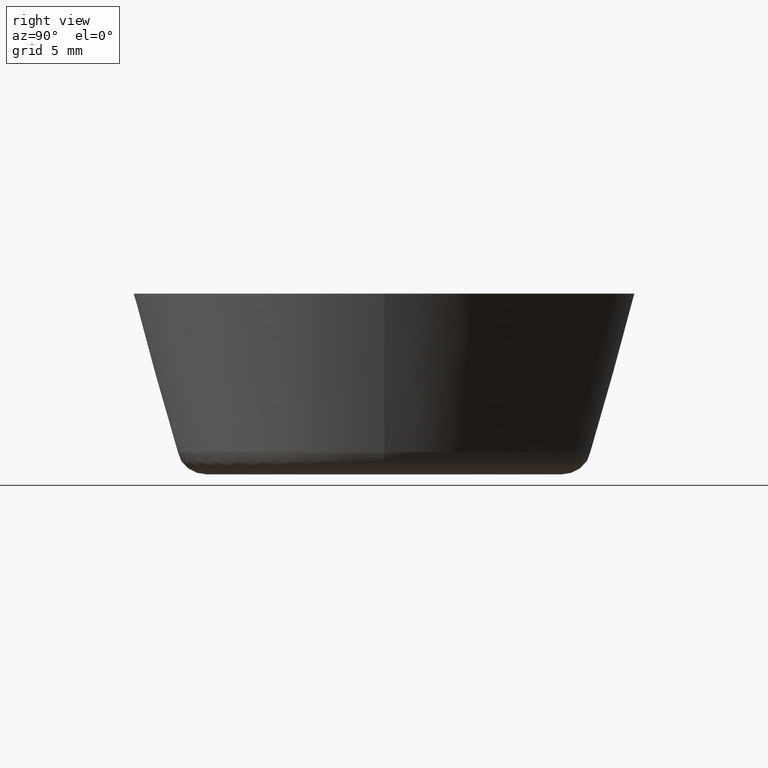
[diagram: clean part render]
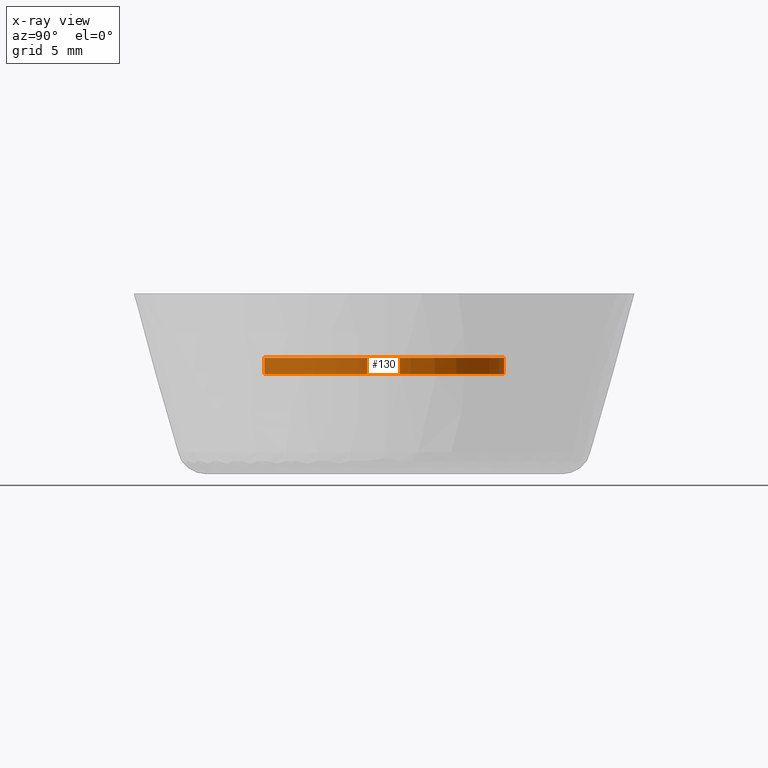
[diagram: x-ray — body ghosted, one internal face saturated and labeled with its STEP entity id]
A machine part, right view, then the same camera in x-ray: the body is ghosted and one INTERNAL B-rep face — a face not visible from any outside direction — is saturated and labeled: STEP entity #130.
In plain terms, the highlighted cylindrical surface (partial cylindrical patch) has radius 6 mm, axis along (-0, -0, -1).
Its self-contained STEP definition (entity closure, byte-faithful):
#130=ADVANCED_FACE('',(#319),#318,.F.);
#318=CYLINDRICAL_SURFACE('',#491,6.00000000000E+000);
#319=FACE_OUTER_BOUND('',#492,.T.);
#488=CARTESIAN_POINT('',(-1.24840330306E-015,3.59158793303E-016,5.40000009537E+000));
#489=DIRECTION('',(-2.38948705047E-015,-2.84026756780E-016,-1.00000000000E+000));
#490=DIRECTION('',(-1.18034234657E-001,9.93009526364E-001,2.27931497802E-028));
#491=AXIS2_PLACEMENT_3D('',#488,#489,#490);
#492=EDGE_LOOP('',(#574,#575,#576,#577));
#574=ORIENTED_EDGE('',*,*,#609,.F.);
#575=ORIENTED_EDGE('',*,*,#622,.T.);
#576=ORIENTED_EDGE('',*,*,#599,.T.);
#577=ORIENTED_EDGE('',*,*,#623,.F.);
#599=EDGE_CURVE('',#733,#732,#740,.T.);
#609=EDGE_CURVE('',#803,#802,#810,.T.);
#622=EDGE_CURVE('',#803,#733,#892,.T.);
#623=EDGE_CURVE('',#802,#732,#898,.T.);
#732=VERTEX_POINT('',#972);
#733=VERTEX_POINT('',#973);
#740=CIRCLE('',#981,6.00000000000E+000);
#802=VERTEX_POINT('',#1022);
#803=VERTEX_POINT('',#1023);
#810=CIRCLE('',#1031,6.00000000000E+000);
#892=(BOUNDED_CURVE() B_SPLINE_CURVE(1,(#1071,#1072),.UNSPECIFIED.,.F.,.F.) B_SPLINE_CURVE_WITH_KNOTS((2,2),(8.33333730703E-002,9.16666640476E-001),.UNSPECIFIED.) CURVE() GEOMETRIC_REPRESENTATION_ITEM() RATIONAL_B_SPLINE_CURVE((1.00000000000E+000,1.00000000000E+000)) REPRESENTATION_ITEM('') );
#898=(BOUNDED_CURVE() B_SPLINE_CURVE(1,(#1073,#1074),.UNSPECIFIED.,.F.,.F.) B_SPLINE_CURVE_WITH_KNOTS((2,2),(8.33333333391E-002,9.16666666667E-001),.UNSPECIFIED.) CURVE() GEOMETRIC_REPRESENTATION_ITEM() RATIONAL_B_SPLINE_CURVE((7.50000000000E-001,7.50000000000E-001)) REPRESENTATION_ITEM('') );
#972=CARTESIAN_POINT('',(7.09235159566E-001,-5.95793466634E+000,5.00000000000E+000));
#973=CARTESIAN_POINT('',(-7.09235159563E-001,5.95793466635E+000,5.00000000000E+000));
#978=CARTESIAN_POINT('',(1.73017156158E-012,7.88702436694E-013,5.00000000000E+000));
#979=DIRECTION('',(4.45154869209E-015,1.12542127300E-015,-1.00000000000E+000));
#980=DIRECTION('',(-1.18205859927E-001,9.92989111058E-001,5.91331928284E-016));
#981=AXIS2_PLACEMENT_3D('',#978,#979,#980);
#1022=CARTESIAN_POINT('',(7.08205350218E-001,-5.95805716504E+000,5.80000000000E+000));
#1023=CARTESIAN_POINT('',(-7.08205407942E-001,5.95805715818E+000,5.80000000000E+000));
#1028=CARTESIAN_POINT('',(1.77236003651E-012,8.05577826668E-013,5.80000000000E+000));
#1029=DIRECTION('',(-4.09302221745E-013,-6.10210166854E-014,-1.00000000000E+000));
#1030=DIRECTION('',(1.18034225036E-001,-9.93009527507E-001,1.22827803976E-014));
#1031=AXIS2_PLACEMENT_3D('',#1028,#1029,#1030);
#1071=CARTESIAN_POINT('',(-7.08205407942E-001,5.95805715818E+000,5.79999996186E+000));
#1072=CARTESIAN_POINT('',(-7.08205407942E-001,5.95805715818E+000,5.00000002514E+000));
#1073=CARTESIAN_POINT('',(7.08205407942E-001,-5.95805715818E+000,5.80000000000E+000));
#1074=CARTESIAN_POINT('',(7.08205407942E-001,-5.95805715818E+000,5.00000000000E+000));